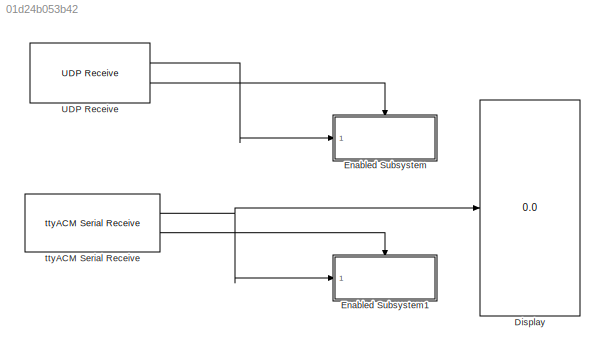
MODEL slx_01d24b053b42
KIND model
CONFIG AbsTol = auto
CONFIG FixedStep = 1
CONFIG MaxStep = auto
CONFIG MinStep = auto
CONFIG RelTol = 1e-3
CONFIG SampleTimeConstraint = Unconstrained
CONFIG Solver = FixedStepAuto
CONFIG SolverMode = Auto
CONFIG SolverName = FixedStepAuto
CONFIG StartTime = 0.0
CONFIG StopTime = inf
BLOCK [Display] Display
  Decimation = 1
  Ports = [1]
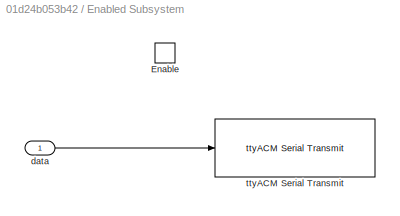
BLOCK [SubSystem] Enabled Subsystem
  Ports = [1, 0, 1]
  RequestExecContextInheritance = off
  TreatAsAtomicUnit = on
  Variant = off
BLOCK [EnablePort] Enabled Subsystem/Enable
  Ports = []
BLOCK [Inport] Enabled Subsystem/data
  IconDisplay = Port number
BLOCK [Reference] Enabled Subsystem/ttyACM Serial Transmit  REF=RPi/ttyACM Serial Transmit
  Ports = [1]
  SourceBlock = RPi/ttyACM Serial Transmit
  SourceType = rpiACMserialTxClass
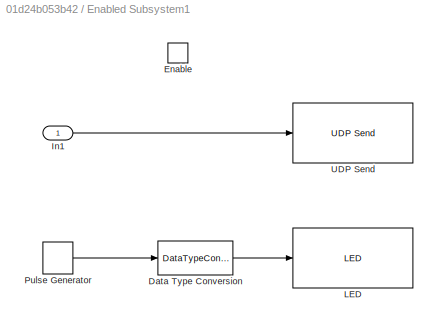
BLOCK [SubSystem] Enabled Subsystem1
  Ports = [1, 0, 1]
  RequestExecContextInheritance = off
  TreatAsAtomicUnit = on
  Variant = off
BLOCK [DataTypeConversion] Enabled Subsystem1/Data Type Conversion
  OutDataTypeStr = boolean
  RndMeth = Floor
  SaturateOnIntegerOverflow = off
BLOCK [EnablePort] Enabled Subsystem1/Enable
  Ports = []
BLOCK [Inport] Enabled Subsystem1/In1
  IconDisplay = Port number
BLOCK [Reference] Enabled Subsystem1/LED  REF=embdlinuxlib/LED
  Ports = [1]
  SourceBlock = embdlinuxlib/LED
  SourceType = LED Write
BLOCK [DiscretePulseGenerator] Enabled Subsystem1/Pulse Generator
  Ports = [0, 1]
  SampleTime = -1
BLOCK [Reference] Enabled Subsystem1/UDP Send  REF=embdlinuxlib/UDP Send
  Ports = [1]
  SourceBlock = embdlinuxlib/UDP Send
  SourceType = UDP Send
BLOCK [Reference] UDP Receive  REF=embdlinuxlib/UDP Receive
  Ports = [0, 2]
  SourceBlock = embdlinuxlib/UDP Receive
  SourceType = UDP Receive
BLOCK [Reference] ttyACM Serial Receive  REF=RPi/ttyACM Serial Receive
  Ports = [0, 2]
  SourceBlock = RPi/ttyACM Serial Receive
  SourceType = rpiACMserialRxClass
LINE Enabled Subsystem/data:1 -> Enabled Subsystem/ttyACM Serial Transmit:1
LINE Enabled Subsystem1/Data Type Conversion:1 -> Enabled Subsystem1/LED:1
LINE Enabled Subsystem1/In1:1 -> Enabled Subsystem1/UDP Send:1
LINE Enabled Subsystem1/Pulse Generator:1 -> Enabled Subsystem1/Data Type Conversion:1
LINE UDP Receive:1 -> Enabled Subsystem:1
LINE UDP Receive:2 -> Enabled Subsystem:enable
NET ttyACM Serial Receive:1 -> Display:1, Enabled Subsystem1:1
LINE ttyACM Serial Receive:2 -> Enabled Subsystem1:enable
note: NET lines group one-source signal fan-out (src -> all destinations, sorted); 1:1 wires keep LINE
